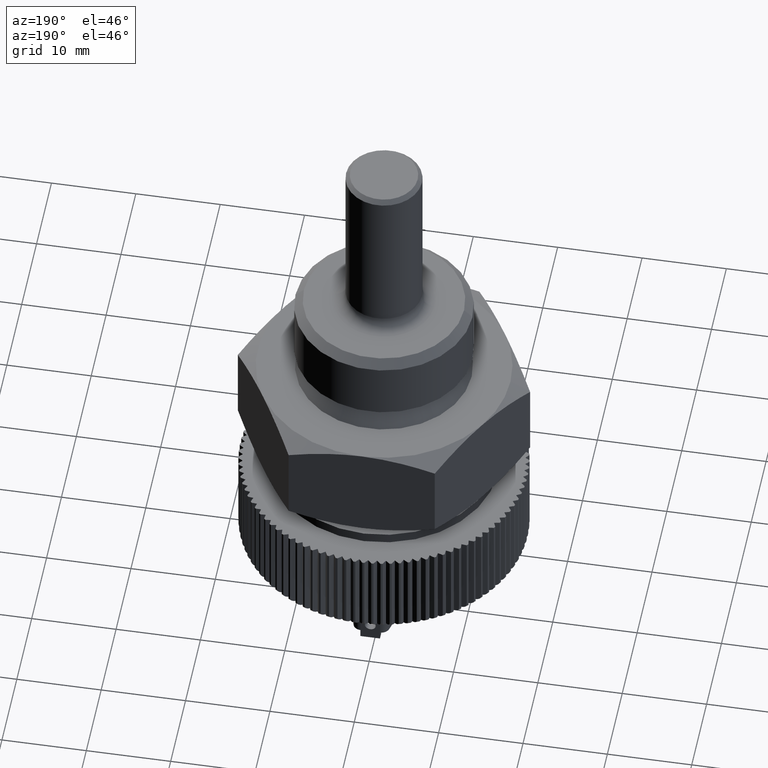
[diagram: clean part render]
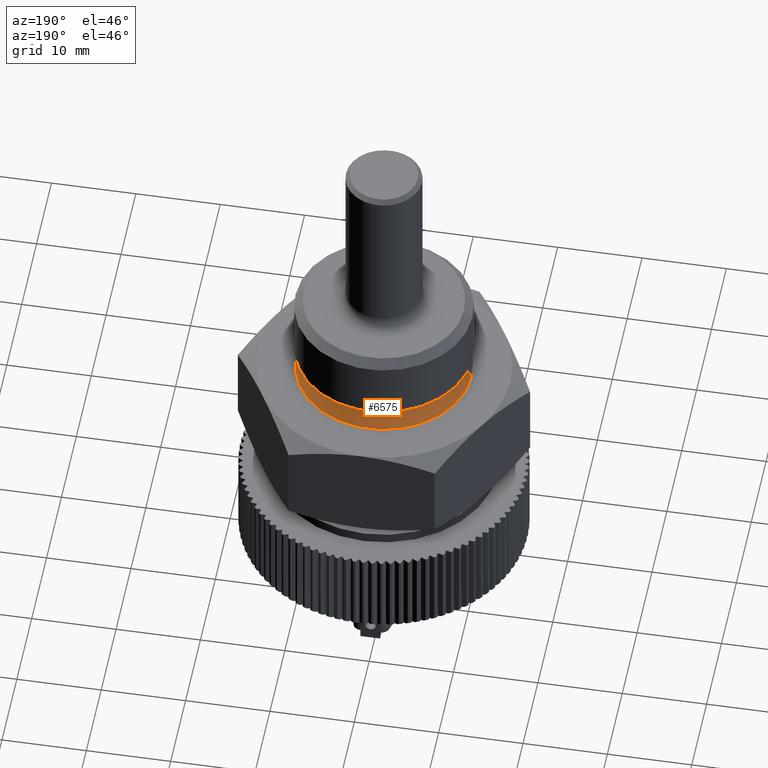
[diagram: same view with one face highlighted and labeled with its STEP entity id]
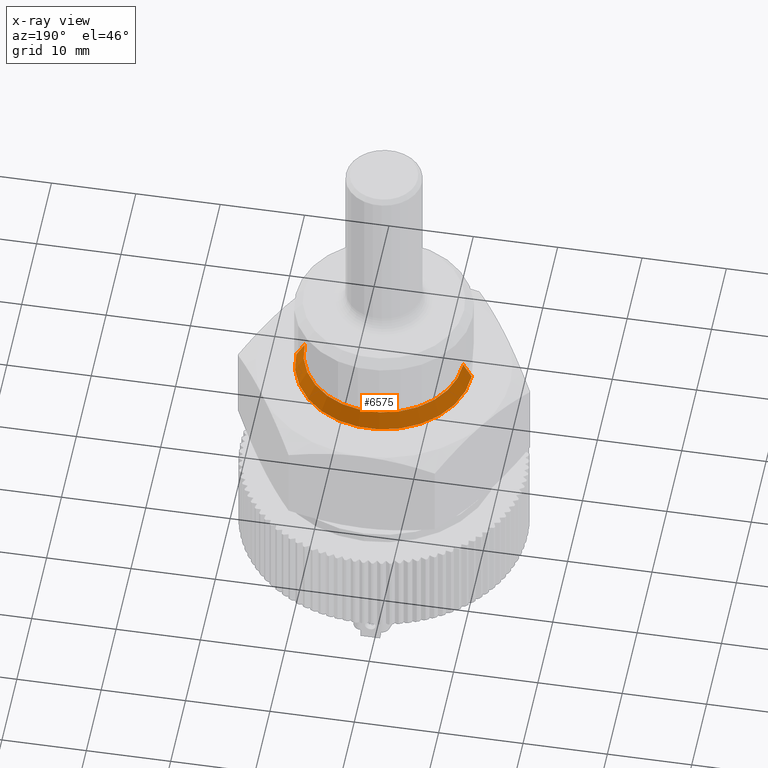
[diagram: x-ray of the same camera — body ghosted, the highlighted face saturated]
A machine part, auxiliary view. The second image highlights one B-rep face of the part: STEP entity #6575.
The next image is the same camera in x-ray: the body ghosted, the highlighted face saturated — about 0% of this face is hidden behind the body in this view.
In plain terms, the highlighted conical surface has half-angle 29.055 deg.
Its self-contained STEP definition (entity closure, byte-faithful):
#337 = ORIENTED_EDGE ( 'NONE', *, *, #8287, .T. ) ;
#530 = VECTOR ( 'NONE', #23931, 1000.000000000000227 ) ;
#781 = CARTESIAN_POINT ( 'NONE',  ( 10.40000000000000036, 1.273632671113247276E-15, 0.0000000000000000000 ) ) ;
#1866 = FACE_OUTER_BOUND ( 'NONE', #4687, .T. ) ;
#1882 = VERTEX_POINT ( 'NONE', #26306 ) ;
#2672 = EDGE_CURVE ( 'NONE', #11643, #6582, #5536, .T. ) ;
#4687 = EDGE_LOOP ( 'NONE', ( #337, #25805, #24302, #9415 ) ) ;
#5536 = CIRCLE ( 'NONE', #12200, 10.40000000000000036 ) ;
#5770 = CONICAL_SURFACE ( 'NONE', #17375, 10.40000000000000036, 0.5070985043923358360 ) ;
#6575 = ADVANCED_FACE ( 'NONE', ( #1866 ), #5770, .T. ) ;
#6582 = VERTEX_POINT ( 'NONE', #26933 ) ;
#7210 = VERTEX_POINT ( 'NONE', #12436 ) ;
#7361 = EDGE_CURVE ( 'NONE', #7210, #11643, #18835, .T. ) ;
#7545 = CARTESIAN_POINT ( 'NONE',  ( 10.40000000000000036, 1.273632671113247276E-15, 0.0000000000000000000 ) ) ;
#8035 = DIRECTION ( 'NONE',  ( 0.0000000000000000000, 0.0000000000000000000, -1.000000000000000000 ) ) ;
#8287 = EDGE_CURVE ( 'NONE', #1882, #7210, #15374, .T. ) ;
#9415 = ORIENTED_EDGE ( 'NONE', *, *, #15938, .F. ) ;
#11643 = VERTEX_POINT ( 'NONE', #7545 ) ;
#12200 = AXIS2_PLACEMENT_3D ( 'NONE', #16937, #21843, #30052 ) ;
#12436 = CARTESIAN_POINT ( 'NONE',  ( 9.392821465589316077, 0.0000000000000000000, 1.812921361939237475 ) ) ;
#13461 = DIRECTION ( 'NONE',  ( 0.4856429311786311098, 5.947410611964489740E-17, -0.8741572761215383736 ) ) ;
#14832 = AXIS2_PLACEMENT_3D ( 'NONE', #31904, #8035, #34329 ) ;
#15374 = CIRCLE ( 'NONE', #14832, 9.392821465589316077 ) ;
#15908 = LINE ( 'NONE', #26593, #530 ) ;
#15938 = EDGE_CURVE ( 'NONE', #1882, #6582, #15908, .T. ) ;
#16937 = CARTESIAN_POINT ( 'NONE',  ( 0.0000000000000000000, 0.0000000000000000000, 0.0000000000000000000 ) ) ;
#17375 = AXIS2_PLACEMENT_3D ( 'NONE', #18002, #21476, #24112 ) ;
#18002 = CARTESIAN_POINT ( 'NONE',  ( 0.0000000000000000000, 0.0000000000000000000, 0.0000000000000000000 ) ) ;
#18835 = LINE ( 'NONE', #781, #29189 ) ;
#21476 = DIRECTION ( 'NONE',  ( 0.0000000000000000000, 0.0000000000000000000, -1.000000000000000000 ) ) ;
#21843 = DIRECTION ( 'NONE',  ( -0.0000000000000000000, -0.0000000000000000000, 1.000000000000000000 ) ) ;
#23931 = DIRECTION ( 'NONE',  ( -0.4856429311786311098, 0.0000000000000000000, -0.8741572761215383736 ) ) ;
#24112 = DIRECTION ( 'NONE',  ( -1.000000000000000000, 0.0000000000000000000, 0.0000000000000000000 ) ) ;
#24302 = ORIENTED_EDGE ( 'NONE', *, *, #2672, .T. ) ;
#25805 = ORIENTED_EDGE ( 'NONE', *, *, #7361, .T. ) ;
#26306 = CARTESIAN_POINT ( 'NONE',  ( -9.392821465589316077, 1.150288874279650685E-15, 1.812921361939237475 ) ) ;
#26593 = CARTESIAN_POINT ( 'NONE',  ( -10.40000000000000036, 0.0000000000000000000, 0.0000000000000000000 ) ) ;
#26933 = CARTESIAN_POINT ( 'NONE',  ( -10.40000000000000036, 0.0000000000000000000, 0.0000000000000000000 ) ) ;
#29189 = VECTOR ( 'NONE', #13461, 1000.000000000000227 ) ;
#30052 = DIRECTION ( 'NONE',  ( 1.000000000000000000, 0.0000000000000000000, 0.0000000000000000000 ) ) ;
#31904 = CARTESIAN_POINT ( 'NONE',  ( 0.0000000000000000000, 0.0000000000000000000, 1.812921361939237475 ) ) ;
#34329 = DIRECTION ( 'NONE',  ( -1.000000000000000000, 0.0000000000000000000, 0.0000000000000000000 ) ) ;